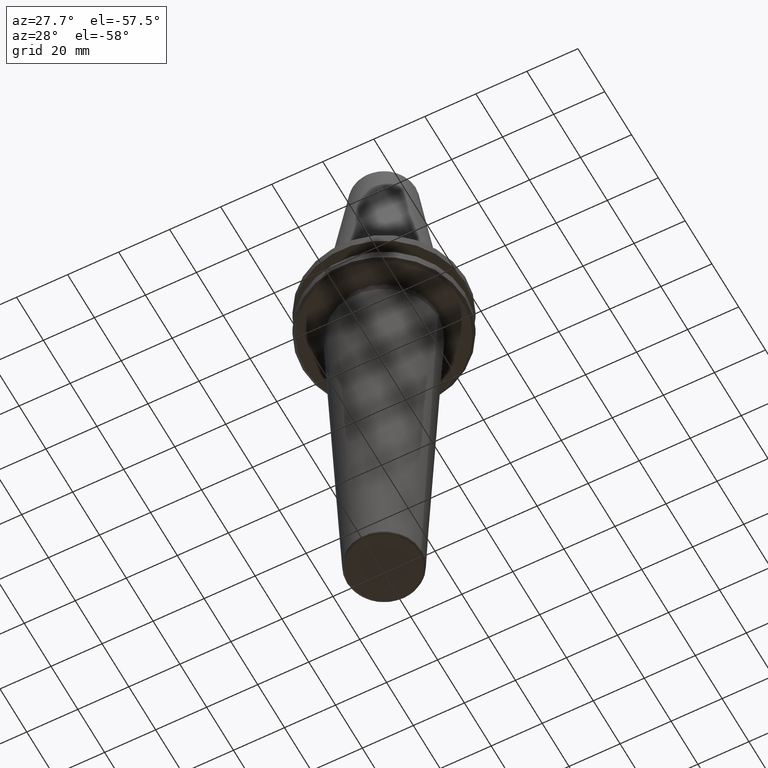
[diagram: clean part render]
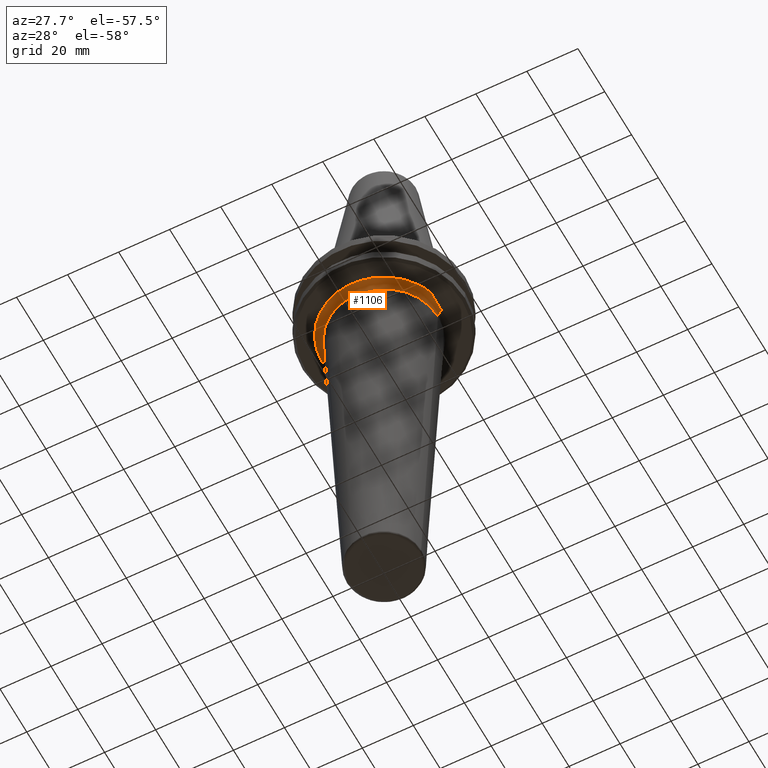
[diagram: same view with one face highlighted and labeled with its STEP entity id]
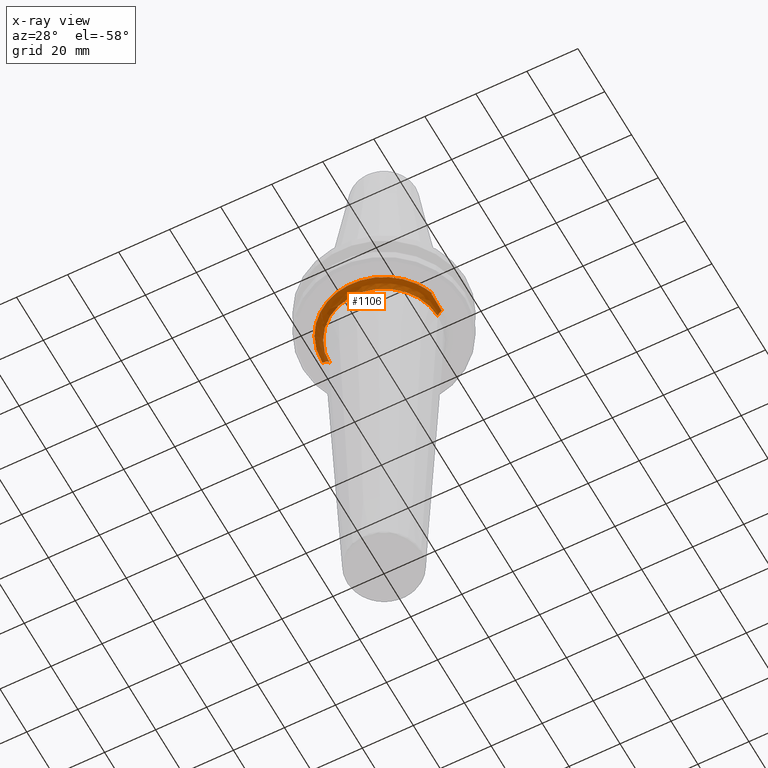
[diagram: x-ray of the same camera — body ghosted, the highlighted face saturated]
A machine part, auxiliary view. The second image highlights one B-rep face of the part: STEP entity #1106.
The next image is the same camera in x-ray: the body ghosted, the highlighted face saturated — about 0% of this face is hidden behind the body in this view.
In plain terms, the highlighted face is a freeform B-spline surface patch.
Its self-contained STEP definition (entity closure, byte-faithful):
#6 = CARTESIAN_POINT ( 'NONE',  ( -1.134409657126257900, -24.09548722903569700, -19.10000000000000500 ) ) ;
#9 = CARTESIAN_POINT ( 'NONE',  ( -2.300280424683321700, -24.02451249288885600, -19.10000000000000900 ) ) ;
#14 = CARTESIAN_POINT ( 'NONE',  ( -3.294302835129654400, -23.90138126041599200, -19.10000000000000900 ) ) ;
#16 = CARTESIAN_POINT ( 'NONE',  ( -5.275287135599851000, -23.57205780300763100, -19.09999999999999800 ) ) ;
#21 = CARTESIAN_POINT ( 'NONE',  ( -6.569728856326773500, -23.24461348961975200, -19.10000000000001200 ) ) ;
#24 = CARTESIAN_POINT ( 'NONE',  ( 18.79505064900202500, -15.11382977425155400, -19.10000000000000900 ) ) ;
#28 = CARTESIAN_POINT ( 'NONE',  ( -7.875437766548781600, -22.79602696309820000, -19.10000000000000900 ) ) ;
#31 = CARTESIAN_POINT ( 'NONE',  ( -7.918797924957912600, -22.78100473691453900, -19.10000000000000100 ) ) ;
#35 = CARTESIAN_POINT ( 'NONE',  ( -8.001578980944698200, -22.75206264041218100, -19.10000000000000500 ) ) ;
#38 = CARTESIAN_POINT ( 'NONE',  ( -8.125604525829123400, -22.70832315644661000, -19.10000000000000500 ) ) ;
#47 = CARTESIAN_POINT ( 'NONE',  ( 8.053111346958731400, -22.73402327567983900, -19.10000000000000500 ) ) ;
#52 = CARTESIAN_POINT ( 'NONE',  ( -8.413975190222588600, -22.60397998604296200, -19.09999999999999800 ) ) ;
#56 = CARTESIAN_POINT ( 'NONE',  ( -8.986627424328689900, -22.38615614729958700, -19.10000000000000500 ) ) ;
#67 = CARTESIAN_POINT ( 'NONE',  ( -10.11557551381755200, -21.91395847806851900, -19.10000000000000500 ) ) ;
#73 = CARTESIAN_POINT ( 'NONE',  ( -11.05520579842518300, -21.44656049002307100, -19.10000000000001200 ) ) ;
#78 = CARTESIAN_POINT ( 'NONE',  ( -11.70753637200814100, -21.08589882660260500, -19.10000000000000500 ) ) ;
#87 = CARTESIAN_POINT ( 'NONE',  ( -11.74841309839792400, -21.06315415520310800, -19.10000000000000500 ) ) ;
#97 = CARTESIAN_POINT ( 'NONE',  ( -11.82744758107610700, -21.01887872985866300, -19.10000000000000900 ) ) ;
#102 = CARTESIAN_POINT ( 'NONE',  ( -11.94578467470042900, -20.95215022986295800, -19.10000000000000500 ) ) ;
#109 = CARTESIAN_POINT ( 'NONE',  ( -12.22040214707322600, -20.79424286268642100, -19.10000000000000500 ) ) ;
#114 = AXIS2_PLACEMENT_3D ( 'NONE', #615, #1517, #536 ) ;
#115 = VERTEX_POINT ( 'NONE', #354 ) ;
#117 = CARTESIAN_POINT ( 'NONE',  ( -12.76362744081629700, -20.46959799292034200, -19.10000000000000500 ) ) ;
#123 = CARTESIAN_POINT ( 'NONE',  ( -13.82603942429229300, -19.78498771173629900, -19.10000000000000100 ) ) ;
#124 = CARTESIAN_POINT ( 'NONE',  ( 12.37243578488508300, -21.12106881860565400, -21.96513648025555600 ) ) ;
#126 = CARTESIAN_POINT ( 'NONE',  ( -14.69546923182580400, -19.13762939931813300, -19.10000000000000900 ) ) ;
#132 = CARTESIAN_POINT ( 'NONE',  ( -15.32693706975297200, -18.62183591501715100, -19.10000000000000500 ) ) ;
#139 = CARTESIAN_POINT ( 'NONE',  ( -15.39915691367616700, -18.56216962286233500, -19.10000000000000500 ) ) ;
#144 = CARTESIAN_POINT ( 'NONE',  ( -15.54043173599068200, -18.44407032048821200, -19.09999999999999800 ) ) ;
#146 = CARTESIAN_POINT ( 'NONE',  ( -15.75123585475076200, -18.26579874385232200, -19.10000000000000500 ) ) ;
#151 = CARTESIAN_POINT ( 'NONE',  ( -0.2573037259842400600, -24.11692149496873200, -19.10000000000000100 ) ) ;
#157 = CARTESIAN_POINT ( 'NONE',  ( -16.23535532887572000, -17.84197337017871700, -19.09999999999999800 ) ) ;
#159 = CARTESIAN_POINT ( 'NONE',  ( -17.17256706519810900, -16.96288917673893700, -19.10000000000000100 ) ) ;
#162 = CARTESIAN_POINT ( 'NONE',  ( 5.984849587479854600, -23.38346955221960900, -19.10000000000000500 ) ) ;
#164 = B_SPLINE_CURVE_WITH_KNOTS ( 'NONE', 3,
 ( #313, #747, #1080, #1608 ),
 .UNSPECIFIED., .F., .F.,
 ( 4, 4 ),
 ( 0.0000000000000000000, 0.0006064951196138188200 ),
 .UNSPECIFIED. ) ;
#166 = CARTESIAN_POINT ( 'NONE',  ( -17.92270190445583500, -16.15550253191756300, -19.10000000000001200 ) ) ;
#167 = FACE_OUTER_BOUND ( 'NONE', #366, .T. ) ;
#168 = CARTESIAN_POINT ( 'NONE',  ( -19.35205224142263000, -14.46888136549171300, -19.10000000000000500 ) ) ;
#172 = CARTESIAN_POINT ( 'NONE',  ( -20.19544121996742100, -13.26641083858014800, -19.10000000000000900 ) ) ;
#176 = CARTESIAN_POINT ( 'NONE',  ( -20.97376542521866900, -11.90752759447578400, -19.10000000000000500 ) ) ;
#184 = EDGE_CURVE ( 'NONE', #217, #115, #1444, .T. ) ;
#185 = CARTESIAN_POINT ( 'NONE',  ( -21.01761440241995200, -11.82995228925155500, -19.10000000000000500 ) ) ;
#186 = CARTESIAN_POINT ( 'NONE',  ( -21.10585868955488900, -11.67180987002771700, -19.10000000000000500 ) ) ;
#188 = CARTESIAN_POINT ( 'NONE',  ( -24.11803596382061700, 2.953607554481366900E-015, -19.10000000000000500 ) ) ;
#191 = CARTESIAN_POINT ( 'NONE',  ( -21.23683665341145500, -11.43396343566907100, -19.10000000000000500 ) ) ;
#193 = VERTEX_POINT ( 'NONE', #1532 ) ;
#199 = CARTESIAN_POINT ( 'NONE',  ( -21.53273263448924600, -10.87455878350537500, -19.10000000000000500 ) ) ;
#203 = CARTESIAN_POINT ( 'NONE',  ( -21.19728147985569000, 2.595918291493074000E-015, -20.27152266987369700 ) ) ;
#205 = CARTESIAN_POINT ( 'NONE',  ( -22.08564752496140200, -9.738030924537143900, -19.10000000000000100 ) ) ;
#209 = CARTESIAN_POINT ( 'NONE',  ( -24.11803596382067400, -14.12801840582350200, -19.10000000000000900 ) ) ;
#211 = CARTESIAN_POINT ( 'NONE',  ( -22.49292816533738900, -8.733489523180141500, -19.10000000000000100 ) ) ;
#214 = EDGE_CURVE ( 'NONE', #1022, #115, #1170, .T. ) ;
#217 = VERTEX_POINT ( 'NONE', #1487 ) ;
#220 = CARTESIAN_POINT ( 'NONE',  ( -22.74994670376475300, -8.007595772033514700, -19.10000000000000900 ) ) ;
#225 = CARTESIAN_POINT ( 'NONE',  ( -22.76399599470586900, -7.967560938738450300, -19.10000000000000500 ) ) ;
#228 = CARTESIAN_POINT ( 'NONE',  ( 22.59997046402688500, -4.675230781973256800, -19.28586575133040200 ) ) ;
#230 = CARTESIAN_POINT ( 'NONE',  ( -22.79281764775059900, -7.884737865651777300, -19.10000000000000900 ) ) ;
#234 = DIRECTION ( 'NONE',  ( 0.0000000000000000000, 1.000000000000000000, 0.0000000000000000000 ) ) ;
#235 = CARTESIAN_POINT ( 'NONE',  ( 21.12106893795419900, -12.37243558114436800, -21.96513648025555600 ) ) ;
#237 = CARTESIAN_POINT ( 'NONE',  ( -22.83570375186675600, -7.760414648650536800, -19.10000000000000500 ) ) ;
#246 = CARTESIAN_POINT ( 'NONE',  ( 22.60000724266969000, -0.3005388504140813500, -19.51153668136291200 ) ) ;
#248 = CARTESIAN_POINT ( 'NONE',  ( -22.93334669998120000, -7.469706890715744200, -19.10000000000000500 ) ) ;
#252 = CARTESIAN_POINT ( 'NONE',  ( -23.11893408358376700, -6.885810368451876300, -19.10000000000000500 ) ) ;
#258 = CARTESIAN_POINT ( 'NONE',  ( -23.45131480028355100, -5.708093298347019000, -19.10000000000000500 ) ) ;
#262 = EDGE_CURVE ( 'NONE', #193, #1022, #164, .T. ) ;
#263 = CARTESIAN_POINT ( 'NONE',  ( 22.60000064211479700, -2.111676797139408800, -19.45802780151605700 ) ) ;
#265 = CARTESIAN_POINT ( 'NONE',  ( -23.66970847087422300, -4.681608908696354400, -19.10000000000000900 ) ) ;
#269 = CARTESIAN_POINT ( 'NONE',  ( 22.60000100049426000, -2.410574758470082700, -19.44209185688013300 ) ) ;
#270 = CARTESIAN_POINT ( 'NONE',  ( -23.79299927999064600, -3.946482064369456900, -19.10000000000000500 ) ) ;
#274 = CARTESIAN_POINT ( 'NONE',  ( -23.79948409094999900, -3.907162307301112100, -19.10000000000000100 ) ) ;
#281 = CARTESIAN_POINT ( 'NONE',  ( -23.81289680138666000, -3.824573282566761100, -19.10000000000000900 ) ) ;
#285 = CARTESIAN_POINT ( 'NONE',  ( -23.83269136598268600, -3.700663233347871700, -19.10000000000000100 ) ) ;
#289 = CARTESIAN_POINT ( 'NONE',  ( -23.87660717596077800, -3.411354200348918600, -19.10000000000000500 ) ) ;
#295 = CARTESIAN_POINT ( 'NONE',  ( -23.95535276626631200, -2.831993795064820400, -19.10000000000000500 ) ) ;
#298 = CARTESIAN_POINT ( 'NONE',  ( -24.07649982827484100, -1.670303627351874500, -19.10000000000000500 ) ) ;
#310 =( BOUNDED_SURFACE ( )  B_SPLINE_SURFACE ( 3, 3, ( 
 ( #1303, #879, #646, #614, #124, #235, #813 ),
 ( #203, #1196, #499, #491, #1258, #667, #931 ),
 ( #748, #422, #854, #1249, #651, #1061, #1593 ),
 ( #1225, #209, #381, #371, #1438, #639, #741 ) ),
 .UNSPECIFIED., .F., .F., .F. ) 
 B_SPLINE_SURFACE_WITH_KNOTS ( ( 4, 4 ),
 ( 4, 3, 4 ),
 ( 0.0000000000000000000, 1.000000000000000000 ),
 ( 0.0000000000000000000, 0.5000000000000000000, 1.000000000000000000 ),
 .UNSPECIFIED. ) 
 GEOMETRIC_REPRESENTATION_ITEM ( )  RATIONAL_B_SPLINE_SURFACE ( (
 ( 1.000000000000000000, 0.8047378533664780700, 0.8047378533664780700, 1.000000000000000000, 0.8047378533664780700, 0.8047378533664780700, 1.000000000000000000),
 ( 0.8152172535606624400, 0.6560361826577233400, 0.6560361826577233400, 0.8152172535606624400, 0.6560361826577233400, 0.6560361826577233400, 0.8152172535606624400),
 ( 0.8152172535606624400, 0.6560361826577233400, 0.6560361826577233400, 0.8152172535606624400, 0.6560361826577233400, 0.6560361826577233400, 0.8152172535606624400),
 ( 1.000000000000000000, 0.8047378533664780700, 0.8047378533664780700, 1.000000000000000000, 0.8047378533664780700, 0.8047378533664780700, 1.000000000000000000) ) ) 
 REPRESENTATION_ITEM ( '' )  SURFACE ( )  );
#312 = CARTESIAN_POINT ( 'NONE',  ( -24.11803596382061700, 2.953607554481366900E-015, -19.10000000000000500 ) ) ;
#313 = CARTESIAN_POINT ( 'NONE',  ( 22.82115541701458700, -7.802212774887125100, -19.10000000000000500 ) ) ;
#315 = CARTESIAN_POINT ( 'NONE',  ( 9.775410971988051800, -22.09739448295912500, -19.10000000000000100 ) ) ;
#322 = CARTESIAN_POINT ( 'NONE',  ( -24.11803596382061300, -0.6694788713497771300, -19.10000000000000500 ) ) ;
#329 = CARTESIAN_POINT ( 'NONE',  ( 8.223582767033198200, -22.67290393418111800, -19.10000000000000500 ) ) ;
#342 = CARTESIAN_POINT ( 'NONE',  ( 22.60000000000000100, -7.249958162414884600, -19.12463012857939400 ) ) ;
#354 = CARTESIAN_POINT ( 'NONE',  ( 22.60000000001440400, 1.453379792781027300E-007, -19.51242066544986600 ) ) ;
#362 = CARTESIAN_POINT ( 'NONE',  ( 22.60000021446200700, -0.1482399011393776800, -19.51242054020074300 ) ) ;
#366 = EDGE_LOOP ( 'NONE', ( #1117, #691, #1411, #550, #423, #980 ) ) ;
#371 = CARTESIAN_POINT ( 'NONE',  ( 7.755014461565457800E-008, -24.11803596382067400, -19.10000000000000900 ) ) ;
#373 = CARTESIAN_POINT ( 'NONE',  ( 22.59999979923069400, -3.550288255597518800, -19.36866415562455800 ) ) ;
#381 = CARTESIAN_POINT ( 'NONE',  ( -14.12801832827335600, -24.11803600924850200, -19.10000000000000900 ) ) ;
#382 = AXIS2_PLACEMENT_3D ( 'NONE', #400, #234, #826 ) ;
#386 = CARTESIAN_POINT ( 'NONE',  ( 22.59997250441572800, -4.222859549494336800, -19.31975348242717400 ) ) ;
#390 = CARTESIAN_POINT ( 'NONE',  ( -0.04812882519346437700, -24.11802325526383200, -19.10000000000000100 ) ) ;
#400 = CARTESIAN_POINT ( 'NONE',  ( 24.11803596382061700, 0.0000000000000000000, -22.10000000000000900 ) ) ;
#401 = CARTESIAN_POINT ( 'NONE',  ( 19.34356826153250700, -14.42216693181744500, -19.10000000000000500 ) ) ;
#422 = CARTESIAN_POINT ( 'NONE',  ( -22.42270823668735600, -13.13491841340404800, -19.09999999999997700 ) ) ;
#423 = ORIENTED_EDGE ( 'NONE', *, *, #262, .F. ) ;
#429 = CARTESIAN_POINT ( 'NONE',  ( 18.70982157948363800, -15.21962375398736700, -19.10000000000000100 ) ) ;
#437 = CARTESIAN_POINT ( 'NONE',  ( 7.196656315146949400, -23.02439448337935000, -19.10000000000000500 ) ) ;
#482 = CARTESIAN_POINT ( 'NONE',  ( 20.91840469721724800, -12.00646636752852800, -19.10000000000000900 ) ) ;
#491 = CARTESIAN_POINT ( 'NONE',  ( 6.815862811911710100E-008, -21.19728147985569000, -20.27152266987369700 ) ) ;
#494 = CIRCLE ( 'NONE', #114, 21.12106885838849700 ) ;
#499 = CARTESIAN_POINT ( 'NONE',  ( -12.41707996895817700, -21.19728151978208800, -20.27152266987370400 ) ) ;
#501 = CARTESIAN_POINT ( 'NONE',  ( 18.09969895611726200, -15.94727328221491500, -19.10000000000000100 ) ) ;
#515 = CARTESIAN_POINT ( 'NONE',  ( 22.59999984159071200, -1.741089731335470100, -19.47433915769486700 ) ) ;
#526 = CARTESIAN_POINT ( 'NONE',  ( 22.60002551266444800, -0.9035224301893634000, -19.50274610288461100 ) ) ;
#530 = CARTESIAN_POINT ( 'NONE',  ( 22.60001800033605300, -0.6017774226969273600, -19.50801725751435400 ) ) ;
#536 = DIRECTION ( 'NONE',  ( 1.000000000000000000, 0.0000000000000000000, -1.314117945532166500E-015 ) ) ;
#550 = ORIENTED_EDGE ( 'NONE', *, *, #214, .F. ) ;
#567 = CARTESIAN_POINT ( 'NONE',  ( 22.60000000001440400, 1.453379792781027300E-007, -19.51242066544986600 ) ) ;
#568 = CARTESIAN_POINT ( 'NONE',  ( 4.040685617786216700, -23.77718417457926500, -19.10000000000000500 ) ) ;
#584 = CARTESIAN_POINT ( 'NONE',  ( 7.797007642836757000, -22.82422885246398500, -19.10000000000000500 ) ) ;
#588 = CARTESIAN_POINT ( 'NONE',  ( 1.785527489413037300, -24.06986469736095200, -19.10000000000000500 ) ) ;
#612 = B_SPLINE_CURVE_WITH_KNOTS ( 'NONE', 3,
 ( #312, #322, #298, #295, #289, #285, #281, #274, #270, #265, #258, #252, #248, #237, #230, #225, #220, #211, #205, #199, #191, #186, #185, #176, #172, #168, #166, #159, #157, #146, #144, #139, #132, #126, #123, #117, #109, #102, #97, #87, #78, #73, #67, #56, #52, #38, #35, #31, #28, #21, #16, #14, #9, #6, #1541, #151, #769, #390, #1363, #1549, #588, #1156, #840, #751, #568, #1581, #1148, #1037, #162, #437, #584, #47, #329, #1585, #315, #1575, #1383, #1016, #1514, #1446, #723, #641, #1626, #1000, #926, #501, #819, #429, #24, #1210, #1082, #401, #661, #655, #482, #622, #1388, #1600, #1304, #1060, #1072, #830 ),
 .UNSPECIFIED., .F., .F.,
 ( 4, 1, 1, 1, 1, 2, 2, 1, 1, 1, 1, 2, 2, 1, 1, 1, 2, 2, 2, 1, 1, 1, 2, 2, 1, 1, 1, 1, 2, 2, 1, 1, 1, 1, 2, 2, 2, 1, 1, 1, 1, 2, 2, 1, 1, 1, 1, 2, 2, 1, 1, 1, 2, 2, 2, 1, 1, 1, 2, 2, 1, 1, 1, 1, 2, 2, 1, 1, 1, 1, 2, 2, 4 ),
 ( 0.0000000000000000000, 0.03125000000000016700, 0.04687500000000025000, 0.05468750000000027800, 0.05859375000000030500, 0.06054687500000030500, 0.06250000000000033300, 0.09375000000000099900, 0.1093750000000013600, 0.1171875000000015300, 0.1210937500000016100, 0.1230468750000016500, 0.1250000000000016900, 0.1562500000000032800, 0.1718750000000040800, 0.1796875000000045000, 0.1835937500000046600, 0.1875000000000048600, 0.2500000000000084400, 0.2812500000000102700, 0.2968750000000111600, 0.3046875000000116000, 0.3085937500000118200, 0.3125000000000119900, 0.3437500000000133200, 0.3593750000000141000, 0.3671875000000144300, 0.3710937500000146000, 0.3730468750000146500, 0.3750000000000147100, 0.4062500000000160400, 0.4218750000000167100, 0.4296875000000169300, 0.4335937500000170400, 0.4355468750000170400, 0.4375000000000170400, 0.5000000000000166500, 0.5312500000000165400, 0.5468750000000163200, 0.5546875000000163200, 0.5585937500000163200, 0.5605468750000163200, 0.5625000000000163200, 0.5937500000000162100, 0.6093750000000159900, 0.6171875000000159900, 0.6210937500000159900, 0.6230468750000159900, 0.6250000000000159900, 0.6562500000000152100, 0.6718750000000146500, 0.6796875000000145400, 0.6835937500000144300, 0.6875000000000143200, 0.7500000000000133200, 0.7812500000000127700, 0.7968750000000124300, 0.8046875000000123200, 0.8085937500000122100, 0.8125000000000121000, 0.8437500000000101000, 0.8593750000000088800, 0.8671875000000083300, 0.8710937500000079900, 0.8730468750000078800, 0.8750000000000077700, 0.9062500000000058800, 0.9218750000000048800, 0.9296875000000045500, 0.9335937500000043300, 0.9355468750000042200, 0.9375000000000041100, 1.000000000000000000 ),
 .UNSPECIFIED. ) ;
#614 = CARTESIAN_POINT ( 'NONE',  ( 6.791357085884994100E-008, -21.12106885838850100, -21.96513648025555200 ) ) ;
#615 = CARTESIAN_POINT ( 'NONE',  ( 0.0000000000000000000, 0.0000000000000000000, -21.96513648025555200 ) ) ;
#622 = CARTESIAN_POINT ( 'NONE',  ( 21.06861971619741400, -11.73910783416127600, -19.10000000000000900 ) ) ;
#639 = CARTESIAN_POINT ( 'NONE',  ( 24.11803605467631700, -14.12801825072321000, -19.10000000000000900 ) ) ;
#641 = CARTESIAN_POINT ( 'NONE',  ( 15.78593956878599000, -18.23437102536212300, -19.10000000000000100 ) ) ;
#646 = CARTESIAN_POINT ( 'NONE',  ( -12.37243564905794300, -21.12106889817134800, -21.96513648025555600 ) ) ;
#650 = CARTESIAN_POINT ( 'NONE',  ( 22.59999951881573600, -3.473435956718400800, -19.37405637657730400 ) ) ;
#651 = CARTESIAN_POINT ( 'NONE',  ( 13.13491848550296700, -22.42270819445279200, -19.09999999999997700 ) ) ;
#655 = CARTESIAN_POINT ( 'NONE',  ( 20.60963132243663100, -12.53565140981026500, -19.10000000000000500 ) ) ;
#661 = CARTESIAN_POINT ( 'NONE',  ( 19.95871122559407600, -13.57189339656274300, -19.10000000000000500 ) ) ;
#667 = CARTESIAN_POINT ( 'NONE',  ( 21.19728155970849000, -12.41707990079954400, -20.27152266987370400 ) ) ;
#668 = CARTESIAN_POINT ( 'NONE',  ( 22.59999905743653400, -3.358318311414895800, -19.38207324616292500 ) ) ;
#673 = CARTESIAN_POINT ( 'NONE',  ( 22.59999831069857000, -3.090812531057398600, -19.40024011047803800 ) ) ;
#691 = ORIENTED_EDGE ( 'NONE', *, *, #1185, .F. ) ;
#699 = DIRECTION ( 'NONE',  ( -1.224646799147353200E-016, -1.000000000000000000, 0.0000000000000000000 ) ) ;
#723 = CARTESIAN_POINT ( 'NONE',  ( 15.64627388663106600, -18.35436901646629300, -19.10000000000000100 ) ) ;
#740 = EDGE_CURVE ( 'NONE', #1430, #193, #612, .T. ) ;
#741 = CARTESIAN_POINT ( 'NONE',  ( 24.11803596382067400, 1.551002921849167200E-007, -19.10000000000000900 ) ) ;
#747 = CARTESIAN_POINT ( 'NONE',  ( 22.67956253187508900, -7.653791227469865200, -19.10000000000000100 ) ) ;
#748 = CARTESIAN_POINT ( 'NONE',  ( -22.42270823668735600, 2.745989787027415000E-015, -19.09999999999998000 ) ) ;
#751 = CARTESIAN_POINT ( 'NONE',  ( 3.911013043674553400, -23.79910457000869100, -19.10000000000000500 ) ) ;
#769 = CARTESIAN_POINT ( 'NONE',  ( -0.1318098175729348100, -24.11771233394652100, -19.10000000000000500 ) ) ;
#799 = CARTESIAN_POINT ( 'NONE',  ( -24.11803596382061700, 2.953607554481366900E-015, -22.10000000000000900 ) ) ;
#813 = CARTESIAN_POINT ( 'NONE',  ( 21.12106885838850100, 1.358271443042848200E-007, -21.96513648025555200 ) ) ;
#819 = CARTESIAN_POINT ( 'NONE',  ( 18.50902244535916100, -15.46463232623907300, -19.10000000000000500 ) ) ;
#826 = DIRECTION ( 'NONE',  ( 1.000000000000000000, 0.0000000000000000000, 0.0000000000000000000 ) ) ;
#830 = CARTESIAN_POINT ( 'NONE',  ( 22.82115541701458700, -7.802212774887125100, -19.10000000000000500 ) ) ;
#840 = CARTESIAN_POINT ( 'NONE',  ( 3.608229413306263600, -23.84775864511559700, -19.10000000000000500 ) ) ;
#854 = CARTESIAN_POINT ( 'NONE',  ( -13.13491834130513100, -22.42270827892192400, -19.09999999999997700 ) ) ;
#879 = CARTESIAN_POINT ( 'NONE',  ( -21.12106885838849700, -12.37243571697151100, -21.96513648025555600 ) ) ;
#909 = CARTESIAN_POINT ( 'NONE',  ( 22.60000109947085200, -6.039322991923795000, -19.18704028961259000 ) ) ;
#926 = CARTESIAN_POINT ( 'NONE',  ( 17.25015109366169600, -16.88305044005642200, -19.10000000000000900 ) ) ;
#931 = CARTESIAN_POINT ( 'NONE',  ( 21.19728147985569000, 1.363172588341524300E-007, -20.27152266987369700 ) ) ;
#980 = ORIENTED_EDGE ( 'NONE', *, *, #740, .F. ) ;
#984 = CARTESIAN_POINT ( 'NONE',  ( 22.59999031592274200, -5.131274878001005600, -19.25199259533626900 ) ) ;
#1000 = CARTESIAN_POINT ( 'NONE',  ( 16.46899426760530400, -17.63456556830307100, -19.10000000000000100 ) ) ;
#1010 = CARTESIAN_POINT ( 'NONE',  ( 22.60000138406860200, -1.662645060865354700, -19.47760804744350000 ) ) ;
#1016 = CARTESIAN_POINT ( 'NONE',  ( 13.91751901372417400, -19.72154490230427000, -19.10000000000000900 ) ) ;
#1022 = VERTEX_POINT ( 'NONE', #342 ) ;
#1037 = CARTESIAN_POINT ( 'NONE',  ( 4.927122554129536700, -23.62052328038468800, -19.10000000000000500 ) ) ;
#1060 = CARTESIAN_POINT ( 'NONE',  ( 21.85285351721686800, -10.29206815446497500, -19.10000000000000500 ) ) ;
#1061 = CARTESIAN_POINT ( 'NONE',  ( 22.42270832115649200, -13.13491826920621200, -19.09999999999997700 ) ) ;
#1072 = CARTESIAN_POINT ( 'NONE',  ( 22.38788744858701200, -9.069503981879675400, -19.10000000000000500 ) ) ;
#1080 = CARTESIAN_POINT ( 'NONE',  ( 22.60000000000000500, -7.454884099700410400, -19.11655909990339800 ) ) ;
#1082 = CARTESIAN_POINT ( 'NONE',  ( 18.88082547609451500, -15.00653079725206100, -19.10000000000000900 ) ) ;
#1083 = CARTESIAN_POINT ( 'NONE',  ( 22.60000580925632700, -1.510374260665648900, -19.48355876740932000 ) ) ;
#1106 = ADVANCED_FACE ( 'NONE', ( #167 ), #310, .F. ) ;
#1117 = ORIENTED_EDGE ( 'NONE', *, *, #1459, .F. ) ;
#1148 = CARTESIAN_POINT ( 'NONE',  ( 4.168910227940347800, -23.75503846731884700, -19.10000000000000500 ) ) ;
#1156 = CARTESIAN_POINT ( 'NONE',  ( 3.001804989472047800, -23.93509273841568300, -19.10000000000000900 ) ) ;
#1170 = B_SPLINE_CURVE_WITH_KNOTS ( 'NONE', 3,
 ( #1343, #1431, #909, #1625, #1604, #984, #1291, #228, #386, #1526, #1274, #373, #650, #668, #673, #1312, #269, #263, #515, #1010, #1083, #1610, #526, #530, #246, #362, #567 ),
 .UNSPECIFIED., .F., .F.,
 ( 4, 2, 2, 1, 2, 2, 2, 1, 1, 2, 2, 2, 1, 1, 2, 4 ),
 ( 0.0000000000000000000, 0.1249446894417072100, 0.1405627756219206300, 0.1561808618021340600, 0.1874170341625608600, 0.2498893788834145300, 0.2576984219735213300, 0.2655074650636280500, 0.2811255512438414800, 0.3123617236042684500, 0.3748340683251223900, 0.3904521545053359400, 0.4060702406855494800, 0.4373064130459764500, 0.4685425854064034800, 0.4997787577668305100 ),
 .UNSPECIFIED. ) ;
#1181 = DIRECTION ( 'NONE',  ( -1.000000000000000000, 1.224646799147353500E-016, 0.0000000000000000000 ) ) ;
#1185 = EDGE_CURVE ( 'NONE', #217, #1516, #494, .T. ) ;
#1196 = CARTESIAN_POINT ( 'NONE',  ( -21.19728147985569000, -12.41708003711680100, -20.27152266987370400 ) ) ;
#1210 = CARTESIAN_POINT ( 'NONE',  ( 18.85168609484779300, -15.04312483089130100, -19.10000000000000500 ) ) ;
#1225 = CARTESIAN_POINT ( 'NONE',  ( -24.11803596382067400, 2.953607554481374000E-015, -19.10000000000000900 ) ) ;
#1249 = CARTESIAN_POINT ( 'NONE',  ( 7.209891672100597500E-008, -22.42270823668735600, -19.09999999999998000 ) ) ;
#1258 = CARTESIAN_POINT ( 'NONE',  ( 12.41708010527543300, -21.19728143992928800, -20.27152266987370400 ) ) ;
#1259 = CIRCLE ( 'NONE', #1309, 2.999999999999999100 ) ;
#1274 = CARTESIAN_POINT ( 'NONE',  ( 22.59999994392500300, -3.590150876456325700, -19.36584579296249900 ) ) ;
#1291 = CARTESIAN_POINT ( 'NONE',  ( 22.59997764603056300, -4.902423725107464500, -19.26883316970188900 ) ) ;
#1303 = CARTESIAN_POINT ( 'NONE',  ( -21.12106885838850100, 2.586584937199632300E-015, -21.96513648025555200 ) ) ;
#1304 = CARTESIAN_POINT ( 'NONE',  ( 21.19615362620684700, -11.50671270321117700, -19.10000000000000900 ) ) ;
#1309 = AXIS2_PLACEMENT_3D ( 'NONE', #799, #699, #1181 ) ;
#1312 = CARTESIAN_POINT ( 'NONE',  ( 22.59999911302708500, -2.863331000817711300, -19.41475837127326200 ) ) ;
#1343 = CARTESIAN_POINT ( 'NONE',  ( 22.60000000000000100, -7.249958162414884600, -19.12463012857939400 ) ) ;
#1363 = CARTESIAN_POINT ( 'NONE',  ( -0.008266907704695099600, -24.11807345291609300, -19.10000000000000500 ) ) ;
#1383 = CARTESIAN_POINT ( 'NONE',  ( 12.99806056184356300, -20.32913985503005700, -19.10000000000000500 ) ) ;
#1388 = CARTESIAN_POINT ( 'NONE',  ( 21.13210365252958300, -11.62393288866965500, -19.10000000000000500 ) ) ;
#1411 = ORIENTED_EDGE ( 'NONE', *, *, #184, .T. ) ;
#1430 = VERTEX_POINT ( 'NONE', #188 ) ;
#1431 = CARTESIAN_POINT ( 'NONE',  ( 22.60000000000000500, -6.646145550265747400, -19.14841134911270300 ) ) ;
#1438 = CARTESIAN_POINT ( 'NONE',  ( 14.12801848337364800, -24.11803591839285200, -19.10000000000000900 ) ) ;
#1444 = CIRCLE ( 'NONE', #382, 2.999999999999999100 ) ;
#1446 = CARTESIAN_POINT ( 'NONE',  ( 15.43584963204697900, -18.53308881001004900, -19.10000000000001200 ) ) ;
#1447 = CARTESIAN_POINT ( 'NONE',  ( -21.12106885838850100, 2.586584937199632000E-015, -21.96513648025555200 ) ) ;
#1459 = EDGE_CURVE ( 'NONE', #1516, #1430, #1259, .T. ) ;
#1487 = CARTESIAN_POINT ( 'NONE',  ( 21.12106885838850100, 0.0000000000000000000, -21.96513648025555200 ) ) ;
#1514 = CARTESIAN_POINT ( 'NONE',  ( 14.93837958522205500, -18.94116130982470700, -19.10000000000000100 ) ) ;
#1516 = VERTEX_POINT ( 'NONE', #1447 ) ;
#1517 = DIRECTION ( 'NONE',  ( -0.0000000000000000000, -0.0000000000000000000, -1.000000000000000000 ) ) ;
#1526 = CARTESIAN_POINT ( 'NONE',  ( 22.60000047408280500, -3.923963078769723300, -19.34209419489884500 ) ) ;
#1532 = CARTESIAN_POINT ( 'NONE',  ( 22.82115541701458700, -7.802212774887125100, -19.10000000000000500 ) ) ;
#1541 = CARTESIAN_POINT ( 'NONE',  ( -0.5499297845053168200, -24.11280500500791700, -19.10000000000000500 ) ) ;
#1549 = CARTESIAN_POINT ( 'NONE',  ( 0.7371262281215348300, -24.11698998619136000, -19.10000000000001200 ) ) ;
#1575 = CARTESIAN_POINT ( 'NONE',  ( 11.09989685157246700, -21.46258940128219100, -19.10000000000000500 ) ) ;
#1581 = CARTESIAN_POINT ( 'NONE',  ( 4.127113591882144700, -23.76233310008075600, -19.10000000000000900 ) ) ;
#1585 = CARTESIAN_POINT ( 'NONE',  ( 8.307298028166741200, -22.64236844935965100, -19.10000000000000500 ) ) ;
#1593 = CARTESIAN_POINT ( 'NONE',  ( 22.42270823668735600, 1.441978361880016800E-007, -19.09999999999998000 ) ) ;
#1600 = CARTESIAN_POINT ( 'NONE',  ( 21.17422762587435200, -11.54701787680732700, -19.10000000000000900 ) ) ;
#1604 = CARTESIAN_POINT ( 'NONE',  ( 22.59999716175777400, -5.284227196018482800, -19.24084787754983200 ) ) ;
#1608 = CARTESIAN_POINT ( 'NONE',  ( 22.60000000000000100, -7.249958162414884600, -19.12463012857939400 ) ) ;
#1610 = CARTESIAN_POINT ( 'NONE',  ( 22.60001456468117500, -1.282274914631917900, -19.49189632273001000 ) ) ;
#1625 = CARTESIAN_POINT ( 'NONE',  ( 22.59999986424960000, -5.362550229778814300, -19.23519881432068600 ) ) ;
#1626 = CARTESIAN_POINT ( 'NONE',  ( 15.85664017608718100, -18.17291212525077200, -19.09999999999999800 ) ) ;